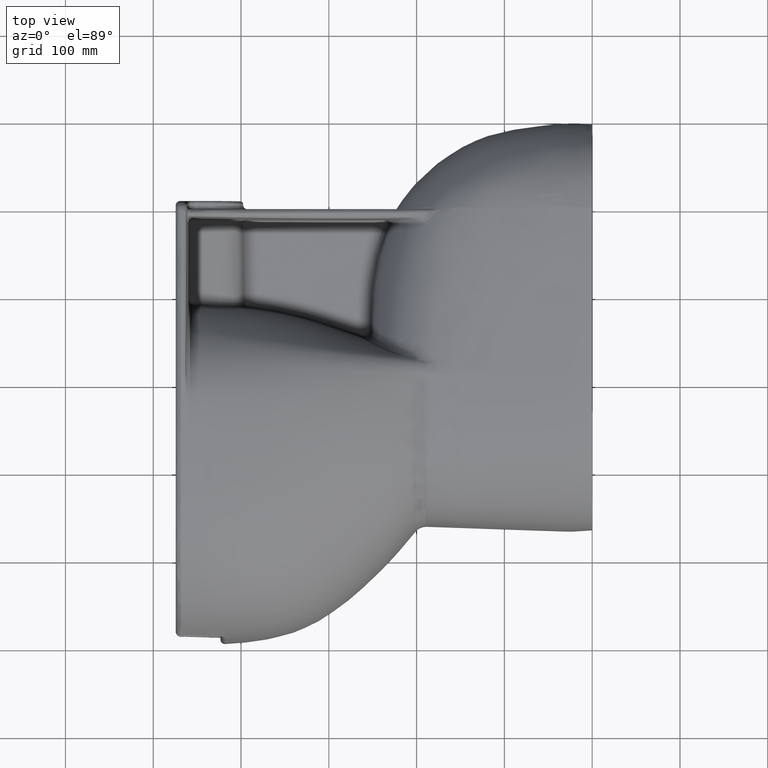
[diagram: clean part render]
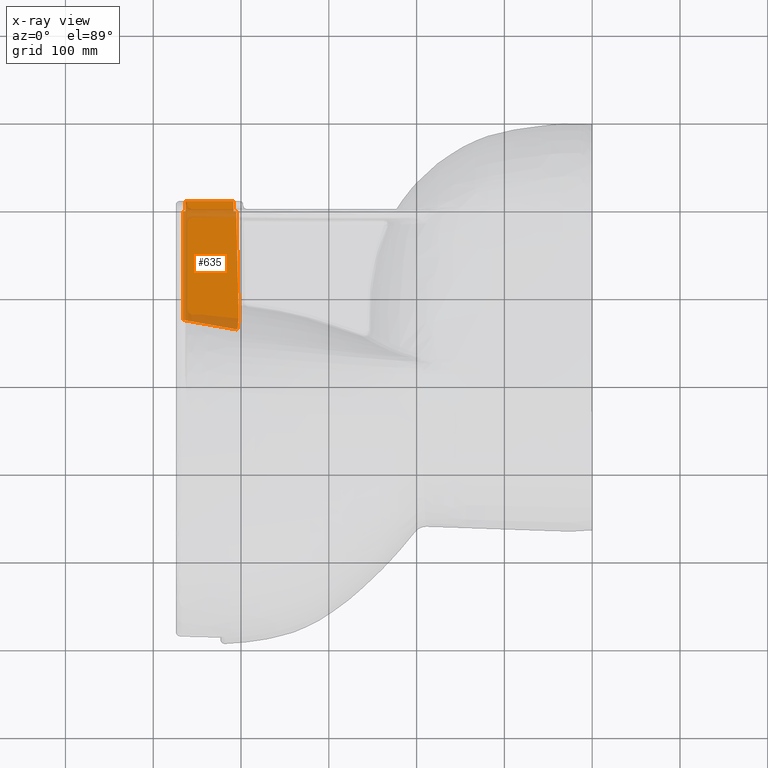
[diagram: x-ray — body ghosted, one internal face saturated and labeled with its STEP entity id]
A machine part, top view, then the same camera in x-ray: the body is ghosted and one INTERNAL B-rep face — a face not visible from any outside direction — is saturated and labeled: STEP entity #635.
In plain terms, the highlighted planar face has unit normal (0, 0, -1).
Its self-contained STEP definition (entity closure, byte-faithful):
#153=PLANE('',#4767);
#183=LINE('',#40202,#234);
#187=LINE('',#40211,#238);
#191=LINE('',#40229,#242);
#199=LINE('',#40328,#250);
#203=LINE('',#40523,#254);
#205=LINE('',#40527,#256);
#206=LINE('',#40529,#257);
#234=VECTOR('',#4869,1.);
#238=VECTOR('',#4875,1.);
#242=VECTOR('',#4883,1.);
#250=VECTOR('',#4903,1.);
#254=VECTOR('',#4911,1.);
#256=VECTOR('',#4915,1.);
#257=VECTOR('',#4916,1.);
#635=ADVANCED_FACE('',(#1111),#153,.T.);
#1111=FACE_OUTER_BOUND('',#1408,.T.);
#1408=EDGE_LOOP('',(#2515,#2516,#2517,#2518,#2519,#2520,#2521,#2522,#2523,
#2524,#2525,#2526,#2527,#2528,#2529,#2530));
#2515=ORIENTED_EDGE('',*,*,#3965,.T.);
#2516=ORIENTED_EDGE('',*,*,#3950,.T.);
#2517=ORIENTED_EDGE('',*,*,#3918,.T.);
#2518=ORIENTED_EDGE('',*,*,#3948,.T.);
#2519=ORIENTED_EDGE('',*,*,#3944,.T.);
#2520=ORIENTED_EDGE('',*,*,#3941,.T.);
#2521=ORIENTED_EDGE('',*,*,#3940,.T.);
#2522=ORIENTED_EDGE('',*,*,#3934,.T.);
#2523=ORIENTED_EDGE('',*,*,#3933,.T.);
#2524=ORIENTED_EDGE('',*,*,#3930,.T.);
#2525=ORIENTED_EDGE('',*,*,#3795,.T.);
#2526=ORIENTED_EDGE('',*,*,#3928,.T.);
#2527=ORIENTED_EDGE('',*,*,#3927,.T.);
#2528=ORIENTED_EDGE('',*,*,#3922,.T.);
#2529=ORIENTED_EDGE('',*,*,#3967,.F.);
#2530=ORIENTED_EDGE('',*,*,#3968,.F.);
#3208=VERTEX_POINT('',#35222);
#3210=VERTEX_POINT('',#35229);
#3276=VERTEX_POINT('',#40200);
#3278=VERTEX_POINT('',#40203);
#3280=VERTEX_POINT('',#40209);
#3282=VERTEX_POINT('',#40212);
#3285=VERTEX_POINT('',#40219);
#3286=VERTEX_POINT('',#40236);
#3288=VERTEX_POINT('',#40263);
#3289=VERTEX_POINT('',#40268);
#3293=VERTEX_POINT('',#40283);
#3294=VERTEX_POINT('',#40297);
#3296=VERTEX_POINT('',#40309);
#3299=VERTEX_POINT('',#40329);
#3307=VERTEX_POINT('',#40524);
#3308=VERTEX_POINT('',#40528);
#3795=EDGE_CURVE('',#3208,#3210,#4469,.T.);
#3918=EDGE_CURVE('',#3278,#3276,#183,.T.);
#3922=EDGE_CURVE('',#3282,#3280,#187,.T.);
#3927=EDGE_CURVE('',#3285,#3282,#4566,.T.);
#3928=EDGE_CURVE('',#3210,#3285,#191,.T.);
#3930=EDGE_CURVE('',#3286,#3208,#4567,.T.);
#3933=EDGE_CURVE('',#3288,#3286,#4569,.T.);
#3934=EDGE_CURVE('',#3289,#3288,#4570,.T.);
#3940=EDGE_CURVE('',#3293,#3289,#4574,.T.);
#3941=EDGE_CURVE('',#3294,#3293,#4575,.T.);
#3944=EDGE_CURVE('',#3296,#3294,#4577,.T.);
#3948=EDGE_CURVE('',#3276,#3296,#4580,.T.);
#3950=EDGE_CURVE('',#3299,#3278,#199,.T.);
#3965=EDGE_CURVE('',#3307,#3299,#203,.T.);
#3967=EDGE_CURVE('',#3308,#3280,#205,.T.);
#3968=EDGE_CURVE('',#3307,#3308,#206,.T.);
#4469=B_SPLINE_CURVE_WITH_KNOTS('',3,(#35230,#35231,#35232,#35233),
 .UNSPECIFIED.,.F.,.F.,(4,4),(0.,1.),.UNSPECIFIED.);
#4566=B_SPLINE_CURVE_WITH_KNOTS('',3,(#40224,#40225,#40226,#40227),
 .UNSPECIFIED.,.F.,.F.,(4,4),(0.,1.),.UNSPECIFIED.);
#4567=B_SPLINE_CURVE_WITH_KNOTS('',3,(#40232,#40233,#40234,#40235),
 .UNSPECIFIED.,.F.,.F.,(4,4),(0.,1.),.UNSPECIFIED.);
#4569=B_SPLINE_CURVE_WITH_KNOTS('',3,(#40259,#40260,#40261,#40262),
 .UNSPECIFIED.,.F.,.F.,(4,4),(0.,1.),.UNSPECIFIED.);
#4570=B_SPLINE_CURVE_WITH_KNOTS('',3,(#40264,#40265,#40266,#40267),
 .UNSPECIFIED.,.F.,.F.,(4,4),(0.,1.),.UNSPECIFIED.);
#4574=B_SPLINE_CURVE_WITH_KNOTS('',3,(#40288,#40289,#40290,#40291),
 .UNSPECIFIED.,.F.,.F.,(4,4),(0.,1.),.UNSPECIFIED.);
#4575=B_SPLINE_CURVE_WITH_KNOTS('',3,(#40293,#40294,#40295,#40296),
 .UNSPECIFIED.,.F.,.F.,(4,4),(0.,1.),.UNSPECIFIED.);
#4577=B_SPLINE_CURVE_WITH_KNOTS('',3,(#40305,#40306,#40307,#40308),
 .UNSPECIFIED.,.F.,.F.,(4,4),(0.,1.),.UNSPECIFIED.);
#4580=B_SPLINE_CURVE_WITH_KNOTS('',3,(#40321,#40322,#40323,#40324),
 .UNSPECIFIED.,.F.,.F.,(4,4),(0.,1.),.UNSPECIFIED.);
#4767=AXIS2_PLACEMENT_3D('',#40530,#4917,#4918);
#4869=DIRECTION('',(1.,0.,0.));
#4875=DIRECTION('',(1.,0.,0.));
#4883=DIRECTION('',(0.,1.,0.));
#4903=DIRECTION('',(0.,-1.,0.));
#4911=DIRECTION('',(1.,0.,0.));
#4915=DIRECTION('',(-9.08364292873812E-014,-1.,0.));
#4916=DIRECTION('',(-1.,0.,0.));
#4917=DIRECTION('',(0.,0.,-1.));
#4918=DIRECTION('',(1.,0.,0.));
#35222=CARTESIAN_POINT('',(-465.57838585355,-126.47528714004,-807.40496336288));
#35229=CARTESIAN_POINT('',(-466.404746168737,-125.490477889544,-807.40496336287));
#35230=CARTESIAN_POINT('',(-465.57838585355,-126.47528714004,-807.404963362863));
#35231=CARTESIAN_POINT('',(-466.129292730341,-126.378152292455,-807.404963362863));
#35232=CARTESIAN_POINT('',(-466.404746168737,-126.049882542289,-807.404963362863));
#35233=CARTESIAN_POINT('',(-466.404746168737,-125.490477889544,-807.404963362863));
#40200=CARTESIAN_POINT('',(-406.384103273618,-2.41028724193704,-807.404963362855));
#40202=CARTESIAN_POINT('',(-434.313324078558,-2.41028724193335,-807.404963362863));
#40203=CARTESIAN_POINT('',(-408.516982760484,-2.41028724193052,-807.404963359587));
#40209=CARTESIAN_POINT('',(-463.516982760485,-2.41028724183101,-807.40496335631));
#40211=CARTESIAN_POINT('',(-434.313324078558,-2.41028724183043,-807.404963362863));
#40212=CARTESIAN_POINT('',(-465.404746168515,-2.4102872418306,-807.404963362863));
#40219=CARTESIAN_POINT('',(-466.404746168627,-3.41028724183043,-807.404963362863));
#40224=CARTESIAN_POINT('',(-466.404746168737,-3.41028724183042,-807.404963362863));
#40225=CARTESIAN_POINT('',(-466.404746168737,-2.86095148857666,-807.404963362863));
#40226=CARTESIAN_POINT('',(-465.959948754309,-2.41028724183043,-807.404963362863));
#40227=CARTESIAN_POINT('',(-465.404746168514,-2.41028724183043,-807.404963362863));
#40229=CARTESIAN_POINT('',(-466.404746168737,-64.7282990137478,-807.404963362863));
#40232=CARTESIAN_POINT('',(-432.611507859024,-132.288221272224,-807.404963362863));
#40233=CARTESIAN_POINT('',(-443.600467190533,-130.350576561496,-807.404963362863));
#40234=CARTESIAN_POINT('',(-454.589426522041,-128.412931850768,-807.404963362863));
#40235=CARTESIAN_POINT('',(-465.57838585355,-126.47528714004,-807.404963362863));
#40236=CARTESIAN_POINT('',(-432.611507856816,-132.288221259704,-807.404963362901));
#40259=CARTESIAN_POINT('',(-411.900246886885,-135.940177331113,-807.404963362863));
#40260=CARTESIAN_POINT('',(-418.804000544264,-134.722858644817,-807.404963362863));
#40261=CARTESIAN_POINT('',(-425.707754201644,-133.50553995852,-807.404963362863));
#40262=CARTESIAN_POINT('',(-432.611507859024,-132.288221272224,-807.404963362863));
#40263=CARTESIAN_POINT('',(-411.900246886885,-135.940177331113,-807.404963362902));
#40264=CARTESIAN_POINT('',(-405.001859588949,-137.156549793696,-807.404963362863));
#40265=CARTESIAN_POINT('',(-407.301322021594,-136.751092306169,-807.404963362863));
#40266=CARTESIAN_POINT('',(-409.600784454239,-136.345634818641,-807.404963362863));
#40267=CARTESIAN_POINT('',(-411.900246886885,-135.940177331113,-807.404963362863));
#40268=CARTESIAN_POINT('',(-405.001859588946,-137.156549793682,-807.404963362911));
#40283=CARTESIAN_POINT('',(-403.832016621698,-136.258897799542,-807.404963362911));
#40288=CARTESIAN_POINT('',(-403.832016621698,-136.258897799542,-807.404963362863));
#40289=CARTESIAN_POINT('',(-403.882892276232,-136.840409191799,-807.404963362863));
#40290=CARTESIAN_POINT('',(-404.421217454666,-137.258932723701,-807.404963362863));
#40291=CARTESIAN_POINT('',(-405.001859588944,-137.156549793672,-807.404963362863));
#40293=CARTESIAN_POINT('',(-402.60470225188,-122.230630360891,-807.404963362863));
#40294=CARTESIAN_POINT('',(-403.013807041819,-126.906719507108,-807.404963362863));
#40295=CARTESIAN_POINT('',(-403.422911831758,-131.582808653325,-807.404963362863));
#40296=CARTESIAN_POINT('',(-403.832016621698,-136.258897799542,-807.404963362863));
#40297=CARTESIAN_POINT('',(-402.60470225188,-122.230630360891,-807.404963362866));
#40305=CARTESIAN_POINT('',(-405.384376691686,-3.38690431278308,-807.404963362863));
#40306=CARTESIAN_POINT('',(-404.457818545084,-43.0014796621523,-807.404963362863));
#40307=CARTESIAN_POINT('',(-403.531260398482,-82.6160550115215,-807.404963362863));
#40308=CARTESIAN_POINT('',(-402.60470225188,-122.230630360891,-807.404963362863));
#40309=CARTESIAN_POINT('',(-405.384376691686,-3.38690431278309,-807.404963362843));
#40321=CARTESIAN_POINT('',(-406.384103273617,-2.41028724193721,-807.404963362863));
#40322=CARTESIAN_POINT('',(-405.843878260201,-2.41028724193721,-807.404963362863));
#40323=CARTESIAN_POINT('',(-405.397145918754,-2.84096177297362,-807.404963362863));
#40324=CARTESIAN_POINT('',(-405.384376691686,-3.38690431278308,-807.404963362863));
#40328=CARTESIAN_POINT('',(-408.516982760484,-64.7282990137478,-807.404963362863));
#40329=CARTESIAN_POINT('',(-408.516982760484,8.58971275818618,-807.404963359587));
#40523=CARTESIAN_POINT('',(-434.313324078558,8.58971275818635,-807.404963362863));
#40524=CARTESIAN_POINT('',(-434.000705774755,8.58971275818602,-807.404963356311));
#40527=CARTESIAN_POINT('',(-463.516982760485,3.08971275817838,-807.404963353034));
#40528=CARTESIAN_POINT('',(-463.516982760484,8.58971275818602,-807.404963353034));
#40529=CARTESIAN_POINT('',(-451.677473446377,8.58971275818585,-807.404963353034));
#40530=CARTESIAN_POINT('',(-466.404746168737,8.58971275818635,-807.404963362863));